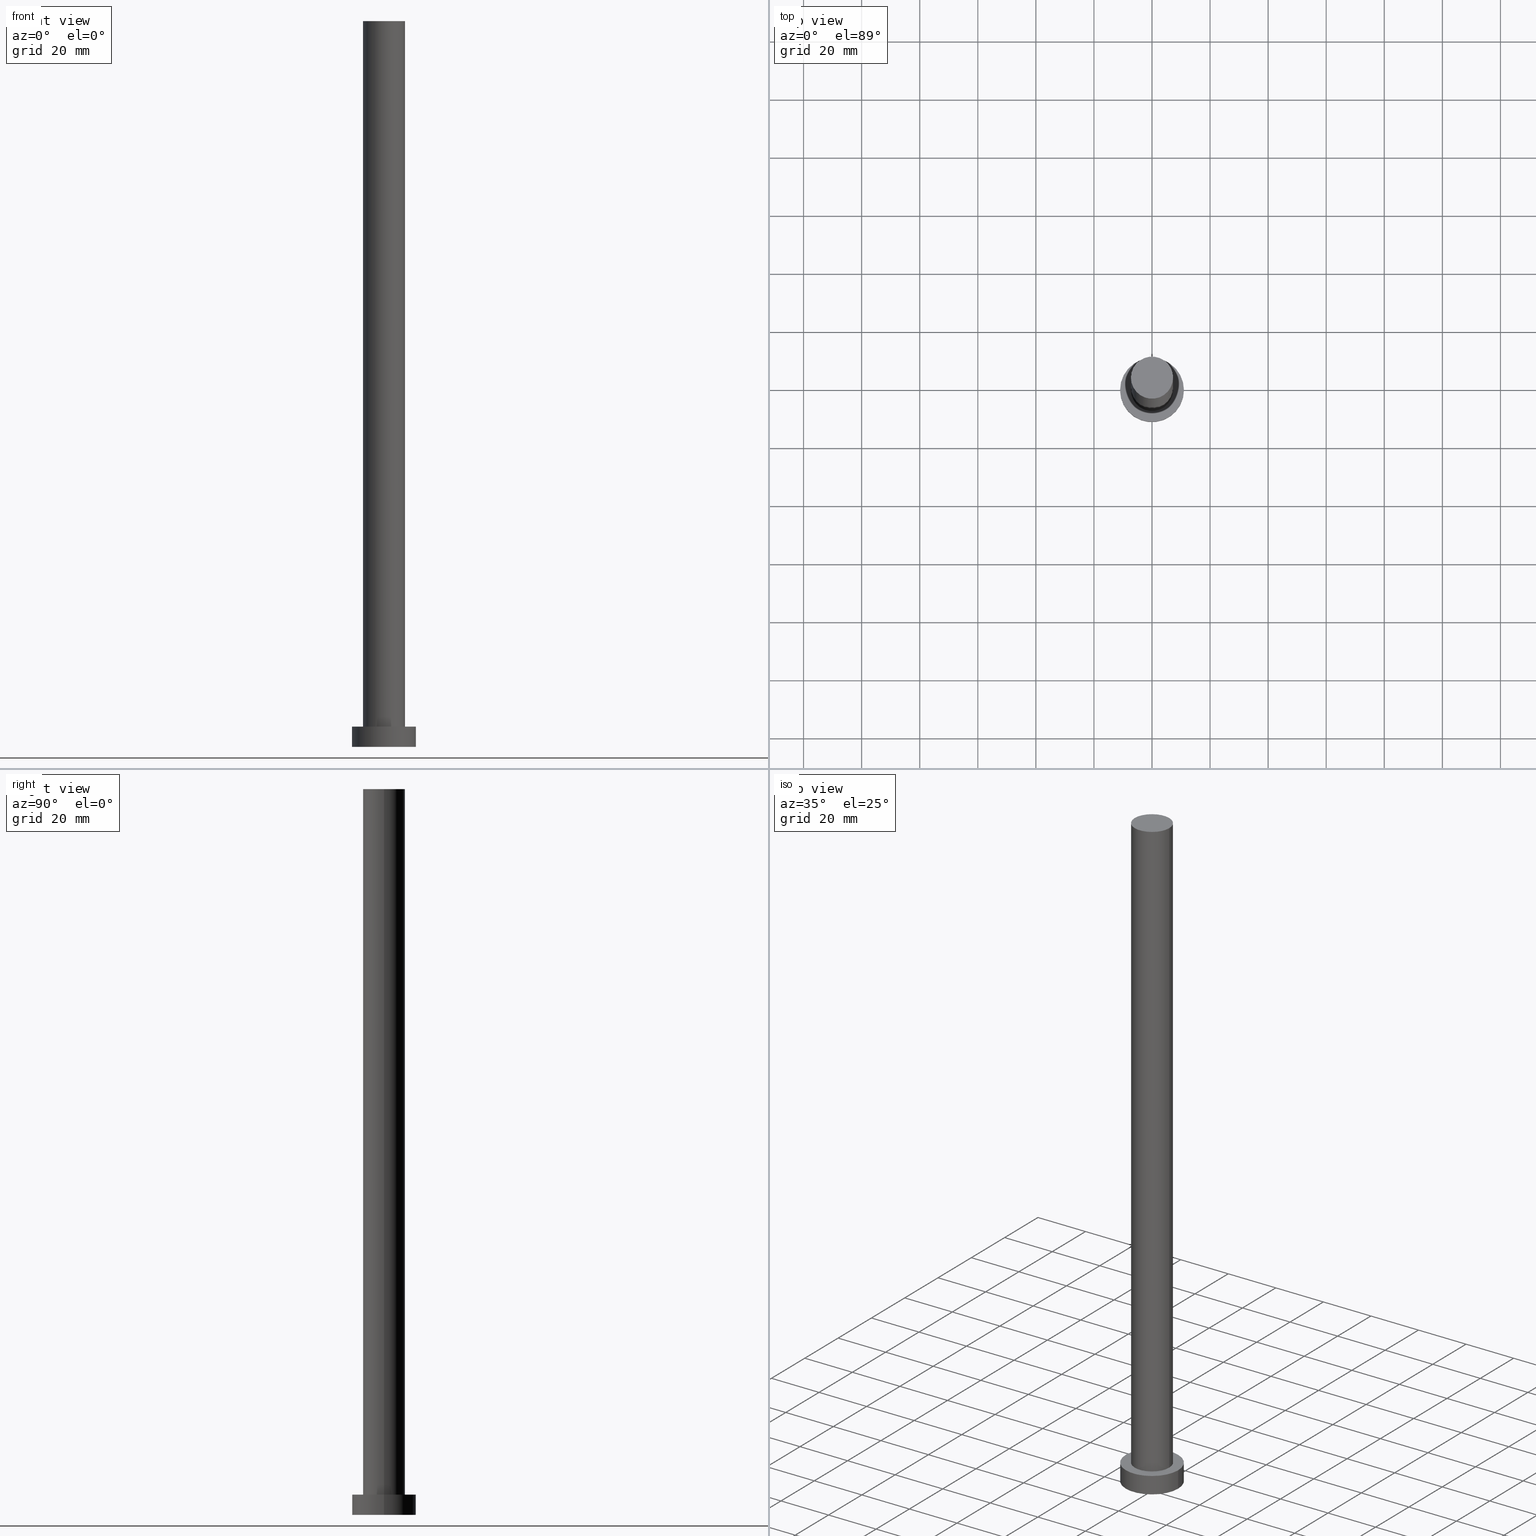
[diagram: canonical four-view strip — front | top / right | iso, engineering-drawing reading convention]
A machine part, canonical four-view strip (front | top / right | iso — engineering-drawing reading convention). The complete STEP part file that produces these views, byte-faithful:
ISO-10303-21;
HEADER;
FILE_DESCRIPTION (( 'STEP AP203' ),
    '1' );
FILE_NAME ('4e67.STEP',
    '2023-02-13T10:41:15',
    ( '' ),
    ( '' ),
    'SwSTEP 2.0',
    'SolidWorks 2019',
    '' );
FILE_SCHEMA (( 'CONFIG_CONTROL_DESIGN' ));
ENDSEC;

DATA;
#1 = EDGE_LOOP ( 'NONE', ( #228, #205, #51, #34 ) ) ;
#2 = EDGE_CURVE ( 'NONE', #71, #208, #164, .T. ) ;
#3 = DIRECTION ( 'NONE',  ( 1.000000000000000000, 0.000000000000000000, -0.000000000000000000 ) ) ;
#4 = CARTESIAN_POINT ( 'NONE',  ( 0.000000000000000000, 0.000000000000000000, 7.000000000000000000 ) ) ;
#5 = CALENDAR_DATE ( 2023, 13, 2 ) ;
#6 = CC_DESIGN_DATE_AND_TIME_ASSIGNMENT ( #17, #192, ( #25 ) ) ;
#7 = DIRECTION ( 'NONE',  ( 0.000000000000000000, 0.000000000000000000, 1.000000000000000000 ) ) ;
#8 = CIRCLE ( 'NONE', #27, 11.00000000000000000 ) ;
#9 = CALENDAR_DATE ( 2023, 13, 2 ) ;
#10 = MECHANICAL_CONTEXT ( 'NONE', #110, 'mechanical' ) ;
#11 = AXIS2_PLACEMENT_3D ( 'NONE', #81, #115, #42 ) ;
#12 = LOCAL_TIME ( 11, 41, 15.00000000000000000, #80 ) ;
#13 = APPLICATION_PROTOCOL_DEFINITION ( 'international standard', 'config_control_design', 1994, #110 ) ;
#14 = ORIENTED_EDGE ( 'NONE', *, *, #162, .T. ) ;
#15 = CC_DESIGN_APPROVAL ( #145, ( #25 ) ) ;
#16 =( NAMED_UNIT ( * ) SI_UNIT ( $, .STERADIAN. ) SOLID_ANGLE_UNIT ( ) );
#17 = DATE_AND_TIME ( #188, #12 ) ;
#18 = DIRECTION ( 'NONE',  ( -0.000000000000000000, -0.000000000000000000, -1.000000000000000000 ) ) ;
#19 = APPROVAL_ROLE ( '' ) ;
#20 = CARTESIAN_POINT ( 'NONE',  ( 11.00000000000000000, 1.347111479062088405E-15, 0.000000000000000000 ) ) ;
#21 = LINE ( 'NONE', #193, #89 ) ;
#22 = PERSON ( 'NEUR�EN�', 'NEUR�EN�', 'NEUR�EN�', ('NEUR�EN�'), ('NEUR�EN�'), ('NEUR�EN�') ) ;
#23 = CARTESIAN_POINT ( 'NONE',  ( 0.000000000000000000, 0.000000000000000000, 250.0000000000000000 ) ) ;
#24 = CARTESIAN_POINT ( 'NONE',  ( 0.000000000000000000, 0.000000000000000000, 250.0000000000000000 ) ) ;
#25 = PRODUCT_DEFINITION ( 'NEZN�M�', '', #91, #196 ) ;
#26 = CLOSED_SHELL ( 'NONE', ( #111, #119, #215, #165, #158, #68, #206 ) ) ;
#27 = AXIS2_PLACEMENT_3D ( 'NONE', #99, #255, #63 ) ;
#28 = CC_DESIGN_DATE_AND_TIME_ASSIGNMENT ( #200, #105, ( #64 ) ) ;
#29 =( GEOMETRIC_REPRESENTATION_CONTEXT ( 3 ) GLOBAL_UNCERTAINTY_ASSIGNED_CONTEXT ( ( #246 ) ) GLOBAL_UNIT_ASSIGNED_CONTEXT ( ( #47, #184, #16 ) ) REPRESENTATION_CONTEXT ( 'NONE', 'WORKASPACE' ) );
#30 = EDGE_CURVE ( 'NONE', #168, #223, #21, .T. ) ;
#31 = APPLICATION_CONTEXT ( 'configuration controlled 3d designs of mechanical parts and assemblies' ) ;
#32 = CARTESIAN_POINT ( 'NONE',  ( 0.000000000000000000, 0.000000000000000000, 7.000000000000000000 ) ) ;
#33 = DIRECTION ( 'NONE',  ( -1.000000000000000000, 0.000000000000000000, 0.000000000000000000 ) ) ;
#34 = ORIENTED_EDGE ( 'NONE', *, *, #141, .F. ) ;
#35 = ORIENTED_EDGE ( 'NONE', *, *, #181, .T. ) ;
#36 = CIRCLE ( 'NONE', #90, 7.250000000000000000 ) ;
#37 = APPLICATION_PROTOCOL_DEFINITION ( 'international standard', 'config_control_design', 1994, #31 ) ;
#38 = DIRECTION ( 'NONE',  ( -0.000000000000000000, -0.000000000000000000, -1.000000000000000000 ) ) ;
#39 = FACE_OUTER_BOUND ( 'NONE', #100, .T. ) ;
#40 = CIRCLE ( 'NONE', #180, 7.250000000000000000 ) ;
#41 = ORIENTED_EDGE ( 'NONE', *, *, #45, .F. ) ;
#42 = DIRECTION ( 'NONE',  ( 1.000000000000000000, 0.000000000000000000, 0.000000000000000000 ) ) ;
#43 = DIRECTION ( 'NONE',  ( 0.000000000000000000, 0.000000000000000000, 1.000000000000000000 ) ) ;
#44 = AXIS2_PLACEMENT_3D ( 'NONE', #4, #43, #155 ) ;
#45 = EDGE_CURVE ( 'NONE', #223, #153, #233, .T. ) ;
#46 = APPROVAL_DATE_TIME ( #227, #189 ) ;
#47 =( LENGTH_UNIT ( ) NAMED_UNIT ( * ) SI_UNIT ( .MILLI., .METRE. ) );
#48 = EDGE_LOOP ( 'NONE', ( #186, #14 ) ) ;
#49 = APPROVAL_ROLE ( '' ) ;
#50 = CARTESIAN_POINT ( 'NONE',  ( 0.000000000000000000, 0.000000000000000000, 250.0000000000000000 ) ) ;
#51 = ORIENTED_EDGE ( 'NONE', *, *, #45, .T. ) ;
#52 = ORIENTED_EDGE ( 'NONE', *, *, #97, .T. ) ;
#53 = EDGE_CURVE ( 'NONE', #146, #71, #122, .T. ) ;
#54 = EDGE_LOOP ( 'NONE', ( #92, #150, #96, #232 ) ) ;
#55 = VECTOR ( 'NONE', #211, 1000.000000000000000 ) ;
#56 = PERSON_AND_ORGANIZATION_ROLE ( 'design_owner' ) ;
#57 = DIRECTION ( 'NONE',  ( -0.000000000000000000, -0.000000000000000000, -1.000000000000000000 ) ) ;
#58 = APPROVAL_STATUS ( 'not_yet_approved' ) ;
#59 = APPROVAL_ROLE ( '' ) ;
#60 = LINE ( 'NONE', #156, #55 ) ;
#61 = AXIS2_PLACEMENT_3D ( 'NONE', #32, #183, #33 ) ;
#62 = PLANE ( 'NONE',  #199 ) ;
#63 = DIRECTION ( 'NONE',  ( 1.000000000000000000, 0.000000000000000000, 0.000000000000000000 ) ) ;
#64 = SECURITY_CLASSIFICATION ( '', '', #225 ) ;
#65 = CC_DESIGN_PERSON_AND_ORGANIZATION_ASSIGNMENT ( #149, #229, ( #91 ) ) ;
#66 = FACE_OUTER_BOUND ( 'NONE', #121, .T. ) ;
#67 = PERSON_AND_ORGANIZATION_ROLE ( 'classification_officer' ) ;
#68 = ADVANCED_FACE ( 'NONE', ( #151 ), #210, .T. ) ;
#69 = FACE_OUTER_BOUND ( 'NONE', #48, .T. ) ;
#70 = DIRECTION ( 'NONE',  ( 1.000000000000000000, 0.000000000000000000, 0.000000000000000000 ) ) ;
#71 = VERTEX_POINT ( 'NONE', #20 ) ;
#72 = AXIS2_PLACEMENT_3D ( 'NONE', #214, #18, #98 ) ;
#73 = CC_DESIGN_PERSON_AND_ORGANIZATION_ASSIGNMENT ( #163, #67, ( #64 ) ) ;
#74 = DIRECTION ( 'NONE',  ( 0.000000000000000000, 0.000000000000000000, 1.000000000000000000 ) ) ;
#75 = CARTESIAN_POINT ( 'NONE',  ( 7.250000000000000000, 8.878689293818310074E-16, 7.000000000000000000 ) ) ;
#76 = DIRECTION ( 'NONE',  ( 1.000000000000000000, 0.000000000000000000, 0.000000000000000000 ) ) ;
#77 = EDGE_CURVE ( 'NONE', #208, #71, #8, .T. ) ;
#78 = CIRCLE ( 'NONE', #139, 11.00000000000000000 ) ;
#79 = CARTESIAN_POINT ( 'NONE',  ( -11.00000000000000000, 0.000000000000000000, 7.000000000000000000 ) ) ;
#80 = COORDINATED_UNIVERSAL_TIME_OFFSET ( 1, 0, .AHEAD. ) ;
#81 = CARTESIAN_POINT ( 'NONE',  ( 0.000000000000000000, 0.000000000000000000, 7.000000000000000000 ) ) ;
#82 = ADVANCED_BREP_SHAPE_REPRESENTATION ( '4e67', ( #245, #123 ), #29 ) ;
#83 = DIRECTION ( 'NONE',  ( -0.000000000000000000, -0.000000000000000000, -1.000000000000000000 ) ) ;
#84 = CC_DESIGN_PERSON_AND_ORGANIZATION_ASSIGNMENT ( #244, #56, ( #224 ) ) ;
#85 = LOCAL_TIME ( 11, 41, 15.00000000000000000, #101 ) ;
#86 = CARTESIAN_POINT ( 'NONE',  ( -7.250000000000000000, 0.000000000000000000, 7.000000000000000000 ) ) ;
#87 = DIRECTION ( 'NONE',  ( 1.000000000000000000, 0.000000000000000000, -0.000000000000000000 ) ) ;
#88 = PERSON_AND_ORGANIZATION ( #22, #240 ) ;
#89 = VECTOR ( 'NONE', #38, 1000.000000000000000 ) ;
#90 = AXIS2_PLACEMENT_3D ( 'NONE', #239, #159, #217 ) ;
#91 = PRODUCT_DEFINITION_FORMATION_WITH_SPECIFIED_SOURCE ( 'LIBOVOLN�', '', #224, .NOT_KNOWN. ) ;
#92 = ORIENTED_EDGE ( 'NONE', *, *, #97, .F. ) ;
#93 = DIRECTION ( 'NONE',  ( 0.000000000000000000, 0.000000000000000000, 1.000000000000000000 ) ) ;
#94 = ORIENTED_EDGE ( 'NONE', *, *, #77, .F. ) ;
#95 = CIRCLE ( 'NONE', #247, 7.250000000000000000 ) ;
#96 = ORIENTED_EDGE ( 'NONE', *, *, #2, .T. ) ;
#97 = EDGE_CURVE ( 'NONE', #146, #133, #134, .T. ) ;
#98 = DIRECTION ( 'NONE',  ( -1.000000000000000000, 0.000000000000000000, 0.000000000000000000 ) ) ;
#99 = CARTESIAN_POINT ( 'NONE',  ( 0.000000000000000000, 0.000000000000000000, 0.000000000000000000 ) ) ;
#100 = EDGE_LOOP ( 'NONE', ( #94, #131 ) ) ;
#101 = COORDINATED_UNIVERSAL_TIME_OFFSET ( 1, 0, .AHEAD. ) ;
#102 = CYLINDRICAL_SURFACE ( 'NONE', #148, 7.250000000000000000 ) ;
#103 = CYLINDRICAL_SURFACE ( 'NONE', #72, 11.00000000000000000 ) ;
#104 = AXIS2_PLACEMENT_3D ( 'NONE', #179, #7, #87 ) ;
#105 = DATE_TIME_ROLE ( 'classification_date' ) ;
#106 = CARTESIAN_POINT ( 'NONE',  ( 0.000000000000000000, 0.000000000000000000, 7.000000000000000000 ) ) ;
#107 = CYLINDRICAL_SURFACE ( 'NONE', #61, 11.00000000000000000 ) ;
#108 = COORDINATED_UNIVERSAL_TIME_OFFSET ( 1, 0, .AHEAD. ) ;
#109 = CARTESIAN_POINT ( 'NONE',  ( -11.00000000000000000, 0.000000000000000000, 0.000000000000000000 ) ) ;
#110 = APPLICATION_CONTEXT ( 'configuration controlled 3d designs of mechanical parts and assemblies' ) ;
#111 = ADVANCED_FACE ( 'NONE', ( #234 ), #102, .T. ) ;
#112 = ORIENTED_EDGE ( 'NONE', *, *, #170, .T. ) ;
#113 = ORIENTED_EDGE ( 'NONE', *, *, #181, .F. ) ;
#114 = CC_DESIGN_SECURITY_CLASSIFICATION ( #64, ( #91 ) ) ;
#115 = DIRECTION ( 'NONE',  ( 0.000000000000000000, 0.000000000000000000, 1.000000000000000000 ) ) ;
#116 = APPROVAL_DATE_TIME ( #238, #145 ) ;
#117 = DIRECTION ( 'NONE',  ( -0.000000000000000000, -0.000000000000000000, -1.000000000000000000 ) ) ;
#118 = CARTESIAN_POINT ( 'NONE',  ( 0.000000000000000000, 0.000000000000000000, 0.000000000000000000 ) ) ;
#119 = ADVANCED_FACE ( 'NONE', ( #135 ), #103, .T. ) ;
#120 = COORDINATED_UNIVERSAL_TIME_OFFSET ( 1, 0, .AHEAD. ) ;
#121 = EDGE_LOOP ( 'NONE', ( #35, #52 ) ) ;
#122 = LINE ( 'NONE', #235, #254 ) ;
#123 = AXIS2_PLACEMENT_3D ( 'NONE', #143, #93, #70 ) ;
#124 = APPROVAL_PERSON_ORGANIZATION ( #190, #145, #19 ) ;
#125 = EDGE_CURVE ( 'NONE', #130, #168, #40, .T. ) ;
#126 = CALENDAR_DATE ( 2023, 13, 2 ) ;
#127 = CARTESIAN_POINT ( 'NONE',  ( 0.000000000000000000, 0.000000000000000000, 7.000000000000000000 ) ) ;
#128 = SHAPE_DEFINITION_REPRESENTATION ( #221, #82 ) ;
#129 = PLANE ( 'NONE',  #169 ) ;
#130 = VERTEX_POINT ( 'NONE', #178 ) ;
#131 = ORIENTED_EDGE ( 'NONE', *, *, #2, .F. ) ;
#132 = DIRECTION ( 'NONE',  ( 1.000000000000000000, 0.000000000000000000, -0.000000000000000000 ) ) ;
#133 = VERTEX_POINT ( 'NONE', #171 ) ;
#134 = CIRCLE ( 'NONE', #44, 11.00000000000000000 ) ;
#135 = FACE_OUTER_BOUND ( 'NONE', #54, .T. ) ;
#136 = CALENDAR_DATE ( 2023, 13, 2 ) ;
#137 = ORIENTED_EDGE ( 'NONE', *, *, #30, .F. ) ;
#138 = DIRECTION ( 'NONE',  ( 0.000000000000000000, 0.000000000000000000, 1.000000000000000000 ) ) ;
#139 = AXIS2_PLACEMENT_3D ( 'NONE', #127, #74, #185 ) ;
#140 = DIRECTION ( 'NONE',  ( -0.000000000000000000, -0.000000000000000000, -1.000000000000000000 ) ) ;
#141 = EDGE_CURVE ( 'NONE', #130, #153, #60, .T. ) ;
#142 = AXIS2_PLACEMENT_3D ( 'NONE', #23, #140, #216 ) ;
#143 = CARTESIAN_POINT ( 'NONE',  ( 0.000000000000000000, 0.000000000000000000, 0.000000000000000000 ) ) ;
#144 = ORIENTED_EDGE ( 'NONE', *, *, #154, .T. ) ;
#145 = APPROVAL ( #58, 'NEUR�EN�' ) ;
#146 = VERTEX_POINT ( 'NONE', #172 ) ;
#147 = PERSON_AND_ORGANIZATION_ROLE ( 'design_supplier' ) ;
#148 = AXIS2_PLACEMENT_3D ( 'NONE', #24, #57, #212 ) ;
#149 = PERSON_AND_ORGANIZATION ( #22, #240 ) ;
#150 = ORIENTED_EDGE ( 'NONE', *, *, #53, .T. ) ;
#151 = FACE_OUTER_BOUND ( 'NONE', #166, .T. ) ;
#152 = PERSON_AND_ORGANIZATION_ROLE ( 'creator' ) ;
#153 = VERTEX_POINT ( 'NONE', #86 ) ;
#154 = EDGE_CURVE ( 'NONE', #133, #208, #252, .T. ) ;
#155 = DIRECTION ( 'NONE',  ( 1.000000000000000000, 0.000000000000000000, 0.000000000000000000 ) ) ;
#156 = CARTESIAN_POINT ( 'NONE',  ( -7.250000000000000000, 0.000000000000000000, 250.0000000000000000 ) ) ;
#157 = LOCAL_TIME ( 11, 41, 15.00000000000000000, #108 ) ;
#158 = ADVANCED_FACE ( 'NONE', ( #39 ), #62, .F. ) ;
#159 = DIRECTION ( 'NONE',  ( 0.000000000000000000, 0.000000000000000000, 1.000000000000000000 ) ) ;
#160 = DATE_AND_TIME ( #5, #182 ) ;
#161 = CARTESIAN_POINT ( 'NONE',  ( 7.250000000000000000, 8.878689293818310074E-16, 250.0000000000000000 ) ) ;
#162 = EDGE_CURVE ( 'NONE', #168, #130, #36, .T. ) ;
#163 = PERSON_AND_ORGANIZATION ( #22, #240 ) ;
#164 = CIRCLE ( 'NONE', #195, 11.00000000000000000 ) ;
#165 = ADVANCED_FACE ( 'NONE', ( #198, #66 ), #197, .T. ) ;
#166 = EDGE_LOOP ( 'NONE', ( #137, #167, #226, #112 ) ) ;
#167 = ORIENTED_EDGE ( 'NONE', *, *, #125, .F. ) ;
#168 = VERTEX_POINT ( 'NONE', #161 ) ;
#169 = AXIS2_PLACEMENT_3D ( 'NONE', #50, #201, #132 ) ;
#170 = EDGE_CURVE ( 'NONE', #153, #223, #95, .T. ) ;
#171 = CARTESIAN_POINT ( 'NONE',  ( -11.00000000000000000, 0.000000000000000000, 7.000000000000000000 ) ) ;
#172 = CARTESIAN_POINT ( 'NONE',  ( 11.00000000000000000, 1.347111479062088405E-15, 7.000000000000000000 ) ) ;
#173 = APPROVAL ( #236, 'NEUR�EN�' ) ;
#174 = APPROVAL_PERSON_ORGANIZATION ( #177, #173, #59 ) ;
#175 = DIRECTION ( 'NONE',  ( 0.000000000000000000, 0.000000000000000000, 1.000000000000000000 ) ) ;
#176 = CARTESIAN_POINT ( 'NONE',  ( 0.000000000000000000, 0.000000000000000000, 250.0000000000000000 ) ) ;
#177 = PERSON_AND_ORGANIZATION ( #22, #240 ) ;
#178 = CARTESIAN_POINT ( 'NONE',  ( -7.250000000000000000, 0.000000000000000000, 250.0000000000000000 ) ) ;
#179 = CARTESIAN_POINT ( 'NONE',  ( 0.000000000000000000, 0.000000000000000000, 7.000000000000000000 ) ) ;
#180 = AXIS2_PLACEMENT_3D ( 'NONE', #176, #175, #191 ) ;
#181 = EDGE_CURVE ( 'NONE', #133, #146, #78, .T. ) ;
#182 = LOCAL_TIME ( 11, 41, 15.00000000000000000, #120 ) ;
#183 = DIRECTION ( 'NONE',  ( -0.000000000000000000, -0.000000000000000000, -1.000000000000000000 ) ) ;
#184 =( NAMED_UNIT ( * ) PLANE_ANGLE_UNIT ( ) SI_UNIT ( $, .RADIAN. ) );
#185 = DIRECTION ( 'NONE',  ( 1.000000000000000000, 0.000000000000000000, 0.000000000000000000 ) ) ;
#186 = ORIENTED_EDGE ( 'NONE', *, *, #125, .T. ) ;
#187 = CC_DESIGN_APPROVAL ( #189, ( #64 ) ) ;
#188 = CALENDAR_DATE ( 2023, 13, 2 ) ;
#189 = APPROVAL ( #222, 'NEUR�EN�' ) ;
#190 = PERSON_AND_ORGANIZATION ( #22, #240 ) ;
#191 = DIRECTION ( 'NONE',  ( 1.000000000000000000, 0.000000000000000000, 0.000000000000000000 ) ) ;
#192 = DATE_TIME_ROLE ( 'creation_date' ) ;
#193 = CARTESIAN_POINT ( 'NONE',  ( 7.250000000000000000, 8.878689293818310074E-16, 250.0000000000000000 ) ) ;
#194 = DIRECTION ( 'NONE',  ( 0.000000000000000000, 0.000000000000000000, 1.000000000000000000 ) ) ;
#195 = AXIS2_PLACEMENT_3D ( 'NONE', #118, #194, #76 ) ;
#196 = DESIGN_CONTEXT ( 'detailed design', #31, 'design' ) ;
#197 = PLANE ( 'NONE',  #104 ) ;
#198 = FACE_BOUND ( 'NONE', #202, .T. ) ;
#199 = AXIS2_PLACEMENT_3D ( 'NONE', #237, #138, #3 ) ;
#200 = DATE_AND_TIME ( #126, #219 ) ;
#201 = DIRECTION ( 'NONE',  ( 0.000000000000000000, 0.000000000000000000, 1.000000000000000000 ) ) ;
#202 = EDGE_LOOP ( 'NONE', ( #248, #41 ) ) ;
#203 = APPROVAL_PERSON_ORGANIZATION ( #88, #189, #49 ) ;
#204 = FACE_OUTER_BOUND ( 'NONE', #207, .T. ) ;
#205 = ORIENTED_EDGE ( 'NONE', *, *, #30, .T. ) ;
#206 = ADVANCED_FACE ( 'NONE', ( #69 ), #129, .T. ) ;
#207 = EDGE_LOOP ( 'NONE', ( #230, #113, #144, #251 ) ) ;
#208 = VERTEX_POINT ( 'NONE', #109 ) ;
#209 = CC_DESIGN_APPROVAL ( #173, ( #91 ) ) ;
#210 = CYLINDRICAL_SURFACE ( 'NONE', #142, 7.250000000000000000 ) ;
#211 = DIRECTION ( 'NONE',  ( -0.000000000000000000, -0.000000000000000000, -1.000000000000000000 ) ) ;
#212 = DIRECTION ( 'NONE',  ( -1.000000000000000000, 0.000000000000000000, 0.000000000000000000 ) ) ;
#213 = VECTOR ( 'NONE', #83, 1000.000000000000000 ) ;
#214 = CARTESIAN_POINT ( 'NONE',  ( 0.000000000000000000, 0.000000000000000000, 7.000000000000000000 ) ) ;
#215 = ADVANCED_FACE ( 'NONE', ( #204 ), #107, .T. ) ;
#216 = DIRECTION ( 'NONE',  ( -1.000000000000000000, 0.000000000000000000, 0.000000000000000000 ) ) ;
#217 = DIRECTION ( 'NONE',  ( 1.000000000000000000, 0.000000000000000000, 0.000000000000000000 ) ) ;
#218 = CC_DESIGN_PERSON_AND_ORGANIZATION_ASSIGNMENT ( #243, #147, ( #91 ) ) ;
#219 = LOCAL_TIME ( 11, 41, 15.00000000000000000, #220 ) ;
#220 = COORDINATED_UNIVERSAL_TIME_OFFSET ( 1, 0, .AHEAD. ) ;
#221 = PRODUCT_DEFINITION_SHAPE ( 'NONE', 'NONE',  #25 ) ;
#222 = APPROVAL_STATUS ( 'not_yet_approved' ) ;
#223 = VERTEX_POINT ( 'NONE', #75 ) ;
#224 = PRODUCT ( '4e67', '4e67', '', ( #10 ) ) ;
#225 = SECURITY_CLASSIFICATION_LEVEL ( 'unclassified' ) ;
#226 = ORIENTED_EDGE ( 'NONE', *, *, #141, .T. ) ;
#227 = DATE_AND_TIME ( #9, #157 ) ;
#228 = ORIENTED_EDGE ( 'NONE', *, *, #162, .F. ) ;
#229 = PERSON_AND_ORGANIZATION_ROLE ( 'creator' ) ;
#230 = ORIENTED_EDGE ( 'NONE', *, *, #53, .F. ) ;
#231 = DIRECTION ( 'NONE',  ( 0.000000000000000000, 0.000000000000000000, 1.000000000000000000 ) ) ;
#232 = ORIENTED_EDGE ( 'NONE', *, *, #154, .F. ) ;
#233 = CIRCLE ( 'NONE', #11, 7.250000000000000000 ) ;
#234 = FACE_OUTER_BOUND ( 'NONE', #1, .T. ) ;
#235 = CARTESIAN_POINT ( 'NONE',  ( 11.00000000000000000, 1.347111479062088405E-15, 7.000000000000000000 ) ) ;
#236 = APPROVAL_STATUS ( 'not_yet_approved' ) ;
#237 = CARTESIAN_POINT ( 'NONE',  ( 0.000000000000000000, 0.000000000000000000, 0.000000000000000000 ) ) ;
#238 = DATE_AND_TIME ( #136, #85 ) ;
#239 = CARTESIAN_POINT ( 'NONE',  ( 0.000000000000000000, 0.000000000000000000, 250.0000000000000000 ) ) ;
#240 = ORGANIZATION ( 'NEUR�EN�', 'NEUR�EN�', '' ) ;
#241 = APPROVAL_DATE_TIME ( #160, #173 ) ;
#242 = CC_DESIGN_PERSON_AND_ORGANIZATION_ASSIGNMENT ( #253, #152, ( #25 ) ) ;
#243 = PERSON_AND_ORGANIZATION ( #22, #240 ) ;
#244 = PERSON_AND_ORGANIZATION ( #22, #240 ) ;
#245 = MANIFOLD_SOLID_BREP ( 'P�idat vysunut�m3', #26 ) ;
#246 = UNCERTAINTY_MEASURE_WITH_UNIT (LENGTH_MEASURE( 1.000000000000000082E-05 ), #47, 'distance_accuracy_value', 'NONE');
#247 = AXIS2_PLACEMENT_3D ( 'NONE', #106, #231, #250 ) ;
#248 = ORIENTED_EDGE ( 'NONE', *, *, #170, .F. ) ;
#249 = PRODUCT_RELATED_PRODUCT_CATEGORY ( 'detail', '', ( #224 ) ) ;
#250 = DIRECTION ( 'NONE',  ( 1.000000000000000000, 0.000000000000000000, 0.000000000000000000 ) ) ;
#251 = ORIENTED_EDGE ( 'NONE', *, *, #77, .T. ) ;
#252 = LINE ( 'NONE', #79, #213 ) ;
#253 = PERSON_AND_ORGANIZATION ( #22, #240 ) ;
#254 = VECTOR ( 'NONE', #117, 1000.000000000000000 ) ;
#255 = DIRECTION ( 'NONE',  ( 0.000000000000000000, 0.000000000000000000, 1.000000000000000000 ) ) ;
ENDSEC;
END-ISO-10303-21;
